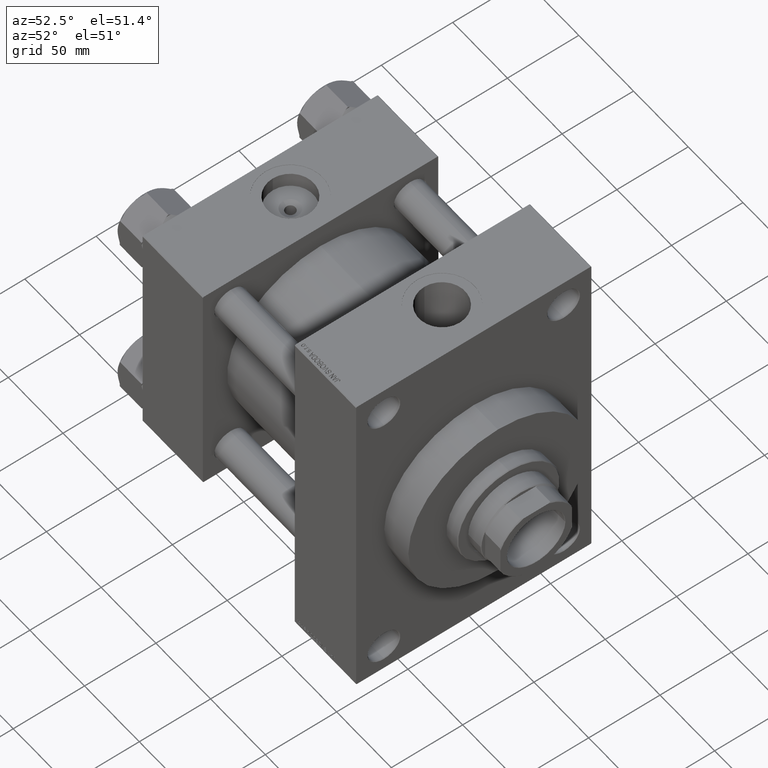
[diagram: clean part render]
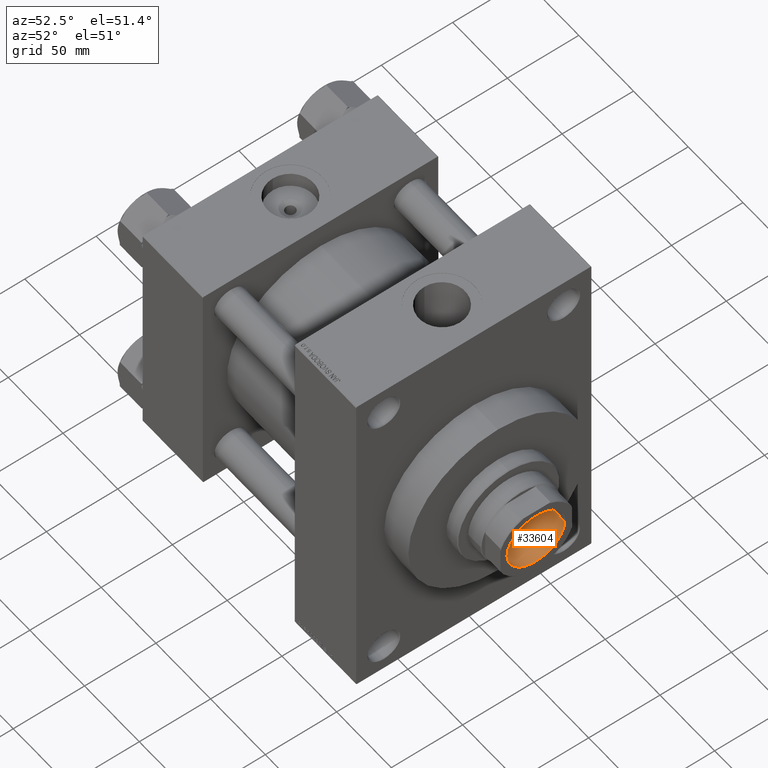
[diagram: same view with one face highlighted and labeled with its STEP entity id]
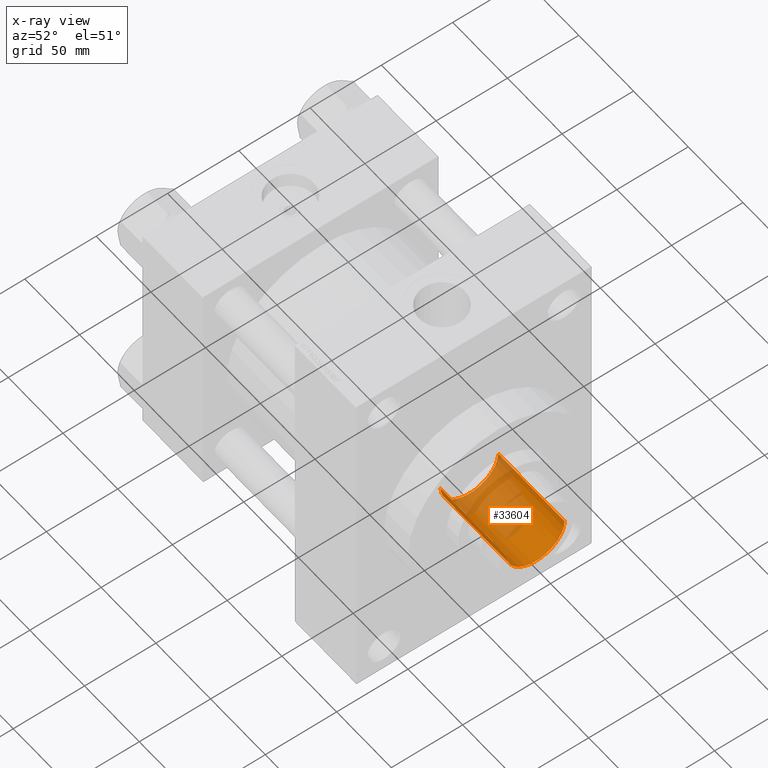
[diagram: x-ray of the same camera — body ghosted, the highlighted face saturated]
A machine part, auxiliary view. The second image highlights one B-rep face of the part: STEP entity #33604.
The next image is the same camera in x-ray: the body ghosted, the highlighted face saturated — about 47% of this face is hidden behind the body in this view.
In plain terms, the highlighted cylindrical surface (edge-blend (fillet) strip) has radius 20.25 mm, axis along (1, 0, 0).
Its self-contained STEP definition (entity closure, byte-faithful):
#4190 = DIRECTION ( 'NONE',  ( -0.000000000000000000, -0.000000000000000000, 1.000000000000000000 ) ) ;
#5126 = CIRCLE ( 'NONE', #26703, 20.24999999999998934 ) ;
#5888 = ORIENTED_EDGE ( 'NONE', *, *, #29124, .F. ) ;
#5921 = DIRECTION ( 'NONE',  ( -0.000000000000000000, -0.000000000000000000, 1.000000000000000000 ) ) ;
#6916 = CARTESIAN_POINT ( 'NONE',  ( 20.24999999999999289, 0.000000000000000000, 196.7000000000001023 ) ) ;
#7828 = CYLINDRICAL_SURFACE ( 'NONE', #18924, 20.24999999999999289 ) ;
#8411 = CARTESIAN_POINT ( 'NONE',  ( -20.24999999999998934, 2.479909768273389117E-15, 136.0000000000000000 ) ) ;
#11356 = CARTESIAN_POINT ( 'NONE',  ( 0.000000000000000000, 0.000000000000000000, 136.0000000000000000 ) ) ;
#12315 = VECTOR ( 'NONE', #14893, 1000.000000000000000 ) ;
#13124 = ORIENTED_EDGE ( 'NONE', *, *, #40510, .T. ) ;
#14893 = DIRECTION ( 'NONE',  ( -0.000000000000000000, -0.000000000000000000, 1.000000000000000000 ) ) ;
#15578 = EDGE_LOOP ( 'NONE', ( #5888, #39694, #35090, #13124 ) ) ;
#16008 = EDGE_CURVE ( 'NONE', #21702, #30205, #24002, .T. ) ;
#16515 = CARTESIAN_POINT ( 'NONE',  ( 20.24999999999999289, 0.000000000000000000, 197.0000000000000000 ) ) ;
#18459 = EDGE_CURVE ( 'NONE', #21702, #19631, #5126, .T. ) ;
#18580 = DIRECTION ( 'NONE',  ( 1.000000000000000000, 0.000000000000000000, 0.000000000000000000 ) ) ;
#18924 = AXIS2_PLACEMENT_3D ( 'NONE', #21159, #4190, #35869 ) ;
#19631 = VERTEX_POINT ( 'NONE', #8411 ) ;
#20666 = CARTESIAN_POINT ( 'NONE',  ( -20.24999999999999289, 2.479909768273389511E-15, 196.7000000000001023 ) ) ;
#21159 = CARTESIAN_POINT ( 'NONE',  ( 0.000000000000000000, 0.000000000000000000, 197.0000000000000000 ) ) ;
#21420 = CARTESIAN_POINT ( 'NONE',  ( -20.24999999999999289, 2.479909768273389511E-15, 197.0000000000000000 ) ) ;
#21702 = VERTEX_POINT ( 'NONE', #39719 ) ;
#21881 = DIRECTION ( 'NONE',  ( 0.000000000000000000, 0.000000000000000000, 1.000000000000000000 ) ) ;
#22119 = CARTESIAN_POINT ( 'NONE',  ( 0.000000000000000000, 0.000000000000000000, 196.7000000000001023 ) ) ;
#24002 = LINE ( 'NONE', #16515, #28165 ) ;
#26703 = AXIS2_PLACEMENT_3D ( 'NONE', #11356, #29910, #18580 ) ;
#28165 = VECTOR ( 'NONE', #5921, 1000.000000000000000 ) ;
#29124 = EDGE_CURVE ( 'NONE', #19631, #46903, #36370, .T. ) ;
#29910 = DIRECTION ( 'NONE',  ( -0.000000000000000000, -0.000000000000000000, 1.000000000000000000 ) ) ;
#30205 = VERTEX_POINT ( 'NONE', #6916 ) ;
#32714 = FACE_OUTER_BOUND ( 'NONE', #15578, .T. ) ;
#33003 = CIRCLE ( 'NONE', #44566, 20.24999999999999289 ) ;
#33604 = ADVANCED_FACE ( 'NONE', ( #32714 ), #7828, .F. ) ;
#35090 = ORIENTED_EDGE ( 'NONE', *, *, #16008, .T. ) ;
#35869 = DIRECTION ( 'NONE',  ( 1.000000000000000000, 0.000000000000000000, 0.000000000000000000 ) ) ;
#36370 = LINE ( 'NONE', #21420, #12315 ) ;
#39694 = ORIENTED_EDGE ( 'NONE', *, *, #18459, .F. ) ;
#39719 = CARTESIAN_POINT ( 'NONE',  ( 20.24999999999998934, 0.000000000000000000, 136.0000000000000000 ) ) ;
#40510 = EDGE_CURVE ( 'NONE', #30205, #46903, #33003, .T. ) ;
#44566 = AXIS2_PLACEMENT_3D ( 'NONE', #22119, #21881, #47194 ) ;
#46903 = VERTEX_POINT ( 'NONE', #20666 ) ;
#47194 = DIRECTION ( 'NONE',  ( 1.000000000000000000, 0.000000000000000000, 0.000000000000000000 ) ) ;